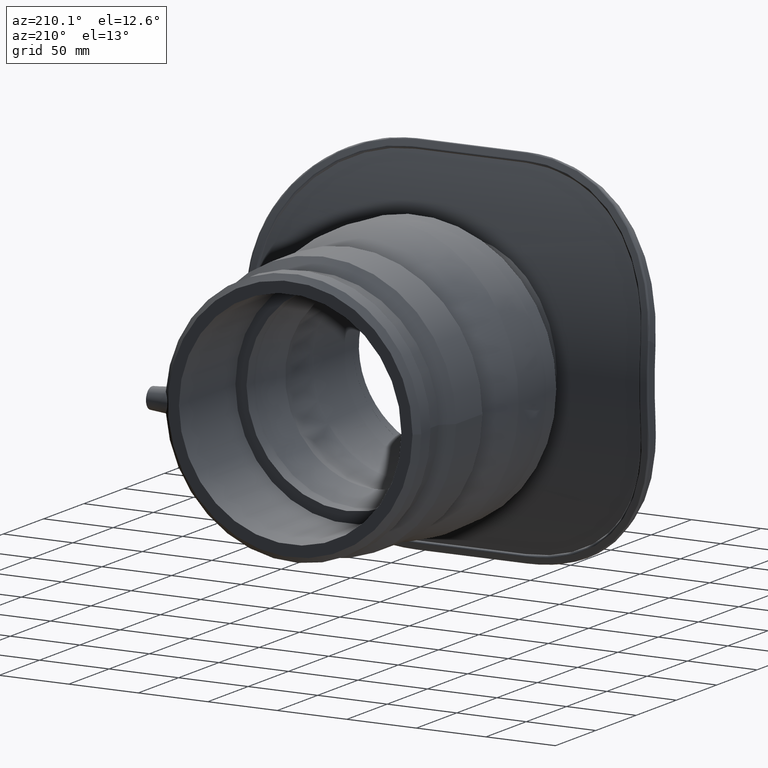
[diagram: clean part render]
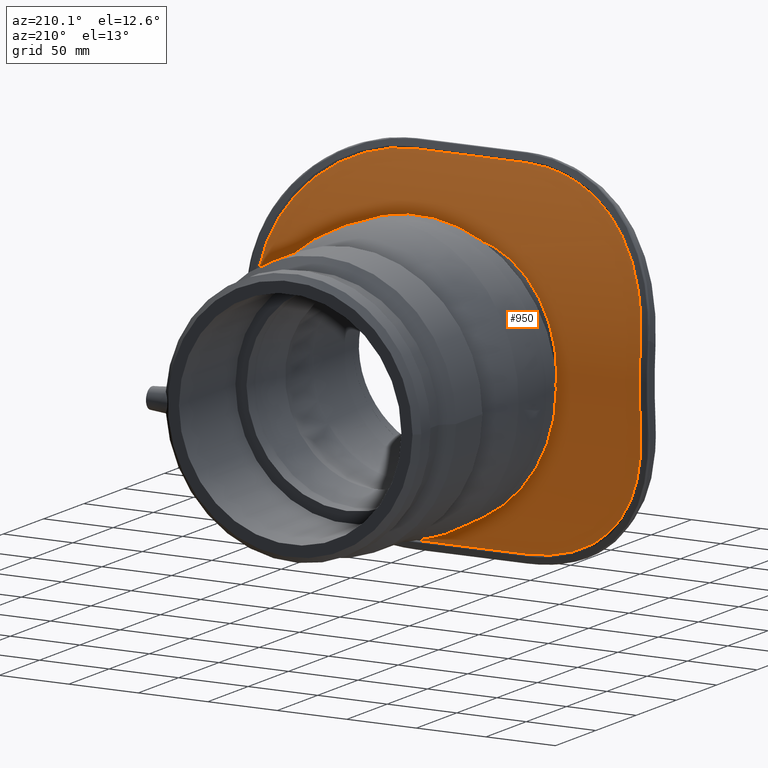
[diagram: same view with one face highlighted and labeled with its STEP entity id]
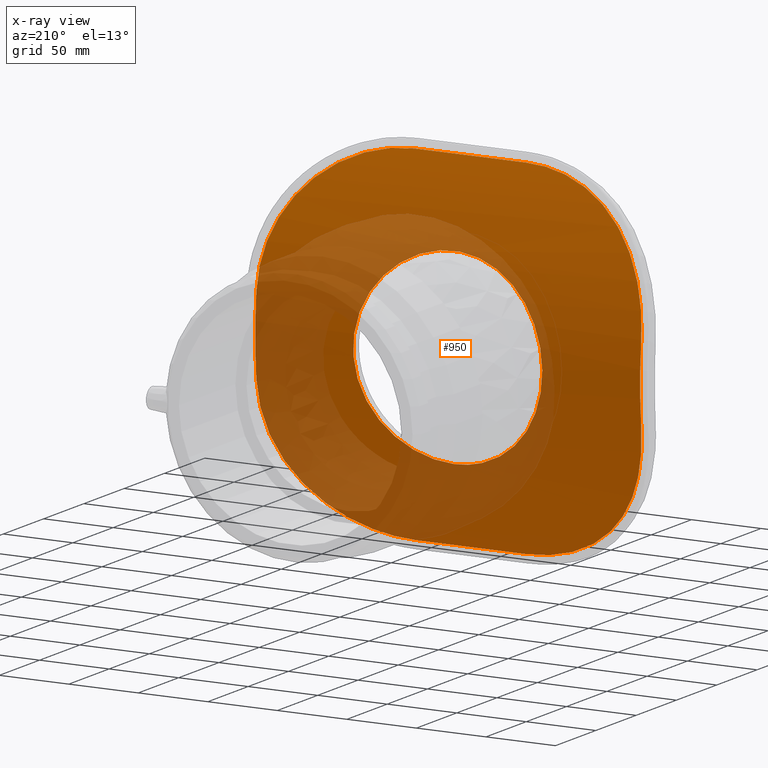
[diagram: x-ray of the same camera — body ghosted, the highlighted face saturated]
A machine part, auxiliary view. The second image highlights one B-rep face of the part: STEP entity #950.
The next image is the same camera in x-ray: the body ghosted, the highlighted face saturated — about 40% of this face is hidden behind the body in this view.
In plain terms, the highlighted cylindrical surface (partial cylindrical patch) has radius 286.575 mm, axis along (1, 0, 0).
Its self-contained STEP definition (entity closure, byte-faithful):
#33=LINE('',#2525,#61);
#38=LINE('',#2594,#66);
#61=VECTOR('',#1307,79.5999999999999);
#66=VECTOR('',#1324,79.5999999999999);
#97=B_SPLINE_CURVE_WITH_KNOTS('',3,(#1677,#1678,#1679,#1680,#1681,#1682,
#1683,#1684,#1685,#1686,#1687,#1688,#1689,#1690,#1691,#1692,#1693,#1694,
#1695,#1696,#1697,#1698,#1699,#1700,#1701,#1702,#1703,#1704,#1705,#1706,
#1707,#1708,#1709,#1710,#1711,#1712,#1713,#1714,#1715,#1716,#1717,#1718,
#1719,#1720,#1721,#1722,#1723,#1724,#1725,#1726,#1727,#1728,#1729,#1730,
#1731,#1732,#1733,#1734,#1735,#1736,#1737,#1738,#1739,#1740,#1741,#1742),
 .UNSPECIFIED.,.T.,.F.,(4,2,2,2,2,2,2,2,2,2,2,2,2,2,2,2,2,2,2,2,2,2,2,2,
2,2,2,2,2,2,2,2,4),(0.,1.28610512812751,2.57221025625502,3.85831538438254,
5.14442051251005,6.43038058357797,7.71634065464589,9.00230072571381,10.2882607967817,
11.5742208678497,12.8601809389176,14.1461410099855,15.4321010810534,16.7182062091809,
18.0043113373084,19.290416465436,20.5765215935635,21.862626721691,23.1487318498185,
24.434836977946,25.7209421060735,27.0069021771414,28.2928622482094,29.5788223192773,
30.8647823903452,32.1507424614131,33.436702532481,34.722662603549,36.0086226746169,
37.2947278027444,38.5808329308719,39.8669380589994,41.1530431871269),
 .UNSPECIFIED.);
#117=B_SPLINE_CURVE_WITH_KNOTS('',3,(#2504,#2505,#2506,#2507,#2508,#2509,
#2510,#2511,#2512,#2513,#2514,#2515,#2516,#2517,#2518,#2519,#2520,#2521),
 .UNSPECIFIED.,.F.,.F.,(4,2,2,2,2,2,2,2,4),(47.7178379300872,49.6359659170831,
51.554093904079,53.4722218910749,55.3903498780708,57.247949082387,59.1055482867031,
60.9631474910193,62.8207466953355),.UNSPECIFIED.);
#118=B_SPLINE_CURVE_WITH_KNOTS('',3,(#2529,#2530,#2531,#2532,#2533,#2534,
#2535,#2536,#2537,#2538,#2539,#2540,#2541,#2542,#2543,#2544,#2545,#2546),
 .UNSPECIFIED.,.F.,.F.,(4,2,2,2,2,2,2,2,4),(31.4103733476677,33.2679725519839,
35.1255717563001,36.9831709606162,38.8407701649324,40.7588981519283,42.6770261389242,
44.5951541259201,46.5132821129159),.UNSPECIFIED.);
#119=B_SPLINE_CURVE_WITH_KNOTS('',3,(#2554,#2555,#2556,#2557,#2558,#2559,
#2560,#2561,#2562,#2563,#2564,#2565,#2566,#2567,#2568,#2569,#2570,#2571),
 .UNSPECIFIED.,.F.,.F.,(4,2,2,2,2,2,2,2,4),(16.3074645824195,18.2255925694154,
20.1437205564113,22.0618485434072,23.9799765304031,25.8375757347192,27.6951749390354,
29.5527741433516,31.4103733476677),.UNSPECIFIED.);
#120=B_SPLINE_CURVE_WITH_KNOTS('',3,(#2574,#2575,#2576,#2577,#2578,#2579,
#2580,#2581,#2582,#2583,#2584,#2585,#2586,#2587,#2588,#2589,#2590,#2591),
 .UNSPECIFIED.,.F.,.F.,(4,2,2,2,2,2,2,2,4),(0.,1.85759920431617,3.71519840863235,
5.57279761294852,7.43039681726469,9.34852480426057,11.2666527912565,13.1847807782523,
15.1029087652482),.UNSPECIFIED.);
#165=FACE_BOUND('',#358,.T.);
#192=CYLINDRICAL_SURFACE('',#1070,286.575);
#257=FACE_OUTER_BOUND('',#357,.T.);
#357=EDGE_LOOP('',(#836,#837,#838,#839,#840,#841,#842,#843));
#358=EDGE_LOOP('',(#844));
#419=CIRCLE('',#1061,286.575);
#420=CIRCLE('',#1066,286.575);
#457=VERTEX_POINT('',#1676);
#496=VERTEX_POINT('',#2496);
#497=VERTEX_POINT('',#2498);
#498=VERTEX_POINT('',#2502);
#499=VERTEX_POINT('',#2523);
#500=VERTEX_POINT('',#2527);
#501=VERTEX_POINT('',#2548);
#502=VERTEX_POINT('',#2552);
#503=VERTEX_POINT('',#2573);
#546=EDGE_CURVE('',#457,#457,#97,.T.);
#606=EDGE_CURVE('',#497,#496,#419,.F.);
#609=EDGE_CURVE('',#496,#498,#117,.T.);
#611=EDGE_CURVE('',#498,#499,#33,.F.);
#613=EDGE_CURVE('',#499,#500,#118,.T.);
#615=EDGE_CURVE('',#500,#501,#420,.T.);
#617=EDGE_CURVE('',#501,#502,#119,.T.);
#618=EDGE_CURVE('',#503,#497,#120,.T.);
#620=EDGE_CURVE('',#503,#502,#38,.F.);
#836=ORIENTED_EDGE('',*,*,#609,.T.);
#837=ORIENTED_EDGE('',*,*,#611,.T.);
#838=ORIENTED_EDGE('',*,*,#613,.T.);
#839=ORIENTED_EDGE('',*,*,#615,.T.);
#840=ORIENTED_EDGE('',*,*,#617,.T.);
#841=ORIENTED_EDGE('',*,*,#620,.F.);
#842=ORIENTED_EDGE('',*,*,#618,.T.);
#843=ORIENTED_EDGE('',*,*,#606,.T.);
#844=ORIENTED_EDGE('',*,*,#546,.T.);
#950=ADVANCED_FACE('',(#257,#165),#192,.T.);
#1061=AXIS2_PLACEMENT_3D('',#2499,#1298,#1299);
#1066=AXIS2_PLACEMENT_3D('',#2550,#1314,#1315);
#1070=AXIS2_PLACEMENT_3D('',#2595,#1325,#1326);
#1298=DIRECTION('center_axis',(-1.,0.,0.));
#1299=DIRECTION('ref_axis',(0.,-0.889998250759874,0.455963938973648));
#1307=DIRECTION('',(-1.,0.,0.));
#1314=DIRECTION('center_axis',(-1.,0.,0.));
#1315=DIRECTION('ref_axis',(0.,-0.889998250759874,0.455963938973648));
#1324=DIRECTION('',(-1.,0.,0.));
#1325=DIRECTION('center_axis',(1.,0.,0.));
#1326=DIRECTION('ref_axis',(0.,-0.889998250759874,0.455963938973648));
#1676=CARTESIAN_POINT('',(0.,-42.009571599525,-68.));
#1677=CARTESIAN_POINT('Ctrl Pts',(0.,-42.009571599525,-68.));
#1678=CARTESIAN_POINT('Ctrl Pts',(4.28701709375837,-42.009571599525,-68.));
#1679=CARTESIAN_POINT('Ctrl Pts',(8.71497044420772,-41.9078539356503,-67.5880568570583));
#1680=CARTESIAN_POINT('Ctrl Pts',(17.5124141890529,-41.4939058404493,-65.8590273947117));
#1681=CARTESIAN_POINT('Ctrl Pts',(21.8820051373346,-41.1820138946437,-64.5423717095247));
#1682=CARTESIAN_POINT('Ctrl Pts',(30.2537370746196,-40.4015180753161,-61.0675975763926));
#1683=CARTESIAN_POINT('Ctrl Pts',(34.2628587730992,-39.933071793607,-58.9067178288634));
#1684=CARTESIAN_POINT('Ctrl Pts',(41.6728424815149,-38.9317422418281,-53.9195613571932));
#1685=CARTESIAN_POINT('Ctrl Pts',(45.0735995969656,-38.39988593313,-51.0929226444048));
#1686=CARTESIAN_POINT('Ctrl Pts',(51.0925831910884,-37.3754622047468,-45.073939050282));
#1687=CARTESIAN_POINT('Ctrl Pts',(53.9191835904317,-36.8465906691279,-41.6733401357589));
#1688=CARTESIAN_POINT('Ctrl Pts',(58.9064915591008,-35.8560977081645,-34.2632585966848));
#1689=CARTESIAN_POINT('Ctrl Pts',(61.0675452861964,-35.3954332239968,-30.2538810740212));
#1690=CARTESIAN_POINT('Ctrl Pts',(64.5425125122947,-34.6306981378705,-21.8816478852186));
#1691=CARTESIAN_POINT('Ctrl Pts',(65.8591873163864,-34.3266589594017,-17.5118192049041));
#1692=CARTESIAN_POINT('Ctrl Pts',(67.5881437233136,-33.9236814811682,-8.71430971990528));
#1693=CARTESIAN_POINT('Ctrl Pts',(68.,-33.825,-4.2865335702264));
#1694=CARTESIAN_POINT('Ctrl Pts',(68.,-33.825,4.2865335702264));
#1695=CARTESIAN_POINT('Ctrl Pts',(67.5881437233136,-33.9236814811682,8.71430971990528));
#1696=CARTESIAN_POINT('Ctrl Pts',(65.8591873163864,-34.3266589594017,17.5118192049041));
#1697=CARTESIAN_POINT('Ctrl Pts',(64.5425125122947,-34.6306981378705,21.8816478852186));
#1698=CARTESIAN_POINT('Ctrl Pts',(61.0675452861964,-35.3954332239968,30.2538810740212));
#1699=CARTESIAN_POINT('Ctrl Pts',(58.9064915591008,-35.8560977081644,34.2632585966848));
#1700=CARTESIAN_POINT('Ctrl Pts',(53.9191835904317,-36.8465906691278,41.6733401357589));
#1701=CARTESIAN_POINT('Ctrl Pts',(51.0925831910884,-37.3754622047467,45.073939050282));
#1702=CARTESIAN_POINT('Ctrl Pts',(45.0735995969656,-38.39988593313,51.0929226444048));
#1703=CARTESIAN_POINT('Ctrl Pts',(41.6728424815149,-38.9317422418281,53.9195613571932));
#1704=CARTESIAN_POINT('Ctrl Pts',(34.2628587730992,-39.933071793607,58.9067178288634));
#1705=CARTESIAN_POINT('Ctrl Pts',(30.2537370746196,-40.4015180753161,61.0675975763926));
#1706=CARTESIAN_POINT('Ctrl Pts',(21.8820051373346,-41.1820138946437,64.5423717095247));
#1707=CARTESIAN_POINT('Ctrl Pts',(17.5124141890529,-41.4939058404493,65.8590273947117));
#1708=CARTESIAN_POINT('Ctrl Pts',(8.71497044420772,-41.9078539356503,67.5880568570583));
#1709=CARTESIAN_POINT('Ctrl Pts',(4.28701709375838,-42.0095715995249,68.));
#1710=CARTESIAN_POINT('Ctrl Pts',(-4.28701709375838,-42.0095715995249,68.));
#1711=CARTESIAN_POINT('Ctrl Pts',(-8.71497044420772,-41.9078539356503,67.5880568570583));
#1712=CARTESIAN_POINT('Ctrl Pts',(-17.5124141890529,-41.4939058404493,65.8590273947117));
#1713=CARTESIAN_POINT('Ctrl Pts',(-21.8820051373346,-41.1820138946437,64.5423717095247));
#1714=CARTESIAN_POINT('Ctrl Pts',(-30.2537370746196,-40.4015180753161,61.0675975763926));
#1715=CARTESIAN_POINT('Ctrl Pts',(-34.2628587730992,-39.9330717936071,58.9067178288634));
#1716=CARTESIAN_POINT('Ctrl Pts',(-41.6728424815149,-38.9317422418281,53.9195613571932));
#1717=CARTESIAN_POINT('Ctrl Pts',(-45.0735995969656,-38.39988593313,51.0929226444048));
#1718=CARTESIAN_POINT('Ctrl Pts',(-51.0925831910884,-37.3754622047467,45.073939050282));
#1719=CARTESIAN_POINT('Ctrl Pts',(-53.9191835904317,-36.8465906691278,41.6733401357589));
#1720=CARTESIAN_POINT('Ctrl Pts',(-58.9064915591008,-35.8560977081644,34.2632585966848));
#1721=CARTESIAN_POINT('Ctrl Pts',(-61.0675452861964,-35.3954332239968,30.2538810740212));
#1722=CARTESIAN_POINT('Ctrl Pts',(-64.5425125122947,-34.6306981378705,21.8816478852186));
#1723=CARTESIAN_POINT('Ctrl Pts',(-65.8591873163864,-34.3266589594017,17.5118192049042));
#1724=CARTESIAN_POINT('Ctrl Pts',(-67.5881437233136,-33.9236814811682,8.7143097199053));
#1725=CARTESIAN_POINT('Ctrl Pts',(-68.,-33.825,4.28653357022642));
#1726=CARTESIAN_POINT('Ctrl Pts',(-68.,-33.825,-4.2865335702264));
#1727=CARTESIAN_POINT('Ctrl Pts',(-67.5881437233136,-33.9236814811682,-8.71430971990528));
#1728=CARTESIAN_POINT('Ctrl Pts',(-65.8591873163864,-34.3266589594017,-17.5118192049041));
#1729=CARTESIAN_POINT('Ctrl Pts',(-64.5425125122947,-34.6306981378706,-21.8816478852186));
#1730=CARTESIAN_POINT('Ctrl Pts',(-61.0675452861964,-35.3954332239968,-30.2538810740212));
#1731=CARTESIAN_POINT('Ctrl Pts',(-58.9064915591008,-35.8560977081644,-34.2632585966848));
#1732=CARTESIAN_POINT('Ctrl Pts',(-53.9191835904317,-36.8465906691278,-41.6733401357589));
#1733=CARTESIAN_POINT('Ctrl Pts',(-51.0925831910885,-37.3754622047467,-45.073939050282));
#1734=CARTESIAN_POINT('Ctrl Pts',(-45.0735995969656,-38.39988593313,-51.0929226444048));
#1735=CARTESIAN_POINT('Ctrl Pts',(-41.6728424815149,-38.9317422418281,-53.9195613571932));
#1736=CARTESIAN_POINT('Ctrl Pts',(-34.2628587730993,-39.9330717936071,-58.9067178288634));
#1737=CARTESIAN_POINT('Ctrl Pts',(-30.2537370746196,-40.4015180753161,-61.0675975763926));
#1738=CARTESIAN_POINT('Ctrl Pts',(-21.8820051373346,-41.1820138946437,-64.5423717095247));
#1739=CARTESIAN_POINT('Ctrl Pts',(-17.5124141890529,-41.4939058404493,-65.8590273947118));
#1740=CARTESIAN_POINT('Ctrl Pts',(-8.7149704442077,-41.9078539356503,-67.5880568570583));
#1741=CARTESIAN_POINT('Ctrl Pts',(-4.28701709375837,-42.009571599525,-68.));
#1742=CARTESIAN_POINT('Ctrl Pts',(0.,-42.009571599525,-68.));
#2496=CARTESIAN_POINT('',(-138.425,-35.1880540745325,27.9173158883194));
#2498=CARTESIAN_POINT('',(-138.425,-35.1880540745325,-27.9173158883195));
#2499=CARTESIAN_POINT('Origin',(-138.425,-320.4,0.));
#2502=CARTESIAN_POINT('',(-39.8,-62.4179265652321,124.781731079906));
#2504=CARTESIAN_POINT('Ctrl Pts',(-138.425,-35.1880540745325,27.9173158883194));
#2505=CARTESIAN_POINT('Ctrl Pts',(-138.425,-35.810915860885,34.2806648162347));
#2506=CARTESIAN_POINT('Ctrl Pts',(-137.877865155871,-36.6746835072427,40.8486671302924));
#2507=CARTESIAN_POINT('Ctrl Pts',(-135.482902029252,-38.8525790726638,53.849035215615));
#2508=CARTESIAN_POINT('Ctrl Pts',(-133.63443866205,-40.1661480180968,60.281377618514));
#2509=CARTESIAN_POINT('Ctrl Pts',(-128.655258369057,-43.083439669321,72.5284873391381));
#2510=CARTESIAN_POINT('Ctrl Pts',(-125.519132543326,-44.6885336043085,78.3557354241248));
#2511=CARTESIAN_POINT('Ctrl Pts',(-118.185015791162,-47.9514676898323,89.0406155480287));
#2512=CARTESIAN_POINT('Ctrl Pts',(-113.986608622464,-49.6070255376868,93.8986587142579));
#2513=CARTESIAN_POINT('Ctrl Pts',(-105.113824358027,-52.6644278083295,102.284794753986));
#2514=CARTESIAN_POINT('Ctrl Pts',(-100.178116197088,-54.171018280961,106.115501655946));
#2515=CARTESIAN_POINT('Ctrl Pts',(-89.4231789143715,-56.9402733106507,112.815525575585));
#2516=CARTESIAN_POINT('Ctrl Pts',(-83.6043124465688,-58.2010849882743,115.686190360265));
#2517=CARTESIAN_POINT('Ctrl Pts',(-71.4628950224474,-60.2734828091682,120.273690497503));
#2518=CARTESIAN_POINT('Ctrl Pts',(-65.1305893131189,-61.0854686711948,121.994927551641));
#2519=CARTESIAN_POINT('Ctrl Pts',(-52.3951898995869,-62.1579620373758,124.249097925701));
#2520=CARTESIAN_POINT('Ctrl Pts',(-45.9919973477206,-62.4179265652321,124.781731079906));
#2521=CARTESIAN_POINT('Ctrl Pts',(-39.8,-62.4179265652321,124.781731079906));
#2523=CARTESIAN_POINT('',(39.8,-62.4179265652321,124.781731079906));
#2525=CARTESIAN_POINT('',(0.,-62.4179265652321,124.781731079906));
#2527=CARTESIAN_POINT('',(138.425,-35.1880540745325,27.9173158883194));
#2529=CARTESIAN_POINT('Ctrl Pts',(39.8,-62.4179265652321,124.781731079906));
#2530=CARTESIAN_POINT('Ctrl Pts',(45.9919973477205,-62.4179265652321,124.781731079906));
#2531=CARTESIAN_POINT('Ctrl Pts',(52.3951898995869,-62.1579620373758,124.249097925701));
#2532=CARTESIAN_POINT('Ctrl Pts',(65.130589313119,-61.0854686711948,121.994927551641));
#2533=CARTESIAN_POINT('Ctrl Pts',(71.4628950224475,-60.2734828091682,120.273690497503));
#2534=CARTESIAN_POINT('Ctrl Pts',(83.6043124465688,-58.2010849882743,115.686190360265));
#2535=CARTESIAN_POINT('Ctrl Pts',(89.4231789143715,-56.9402733106507,112.815525575585));
#2536=CARTESIAN_POINT('Ctrl Pts',(100.178116197087,-54.171018280961,106.115501655946));
#2537=CARTESIAN_POINT('Ctrl Pts',(105.113824358027,-52.6644278083295,102.284794753986));
#2538=CARTESIAN_POINT('Ctrl Pts',(113.986608622464,-49.6070255376868,93.8986587142581));
#2539=CARTESIAN_POINT('Ctrl Pts',(118.185015791162,-47.9514676898323,89.0406155480289));
#2540=CARTESIAN_POINT('Ctrl Pts',(125.519132543325,-44.6885336043085,78.355735424125));
#2541=CARTESIAN_POINT('Ctrl Pts',(128.655258369057,-43.083439669321,72.5284873391382));
#2542=CARTESIAN_POINT('Ctrl Pts',(133.63443866205,-40.1661480180968,60.2813776185142));
#2543=CARTESIAN_POINT('Ctrl Pts',(135.482902029252,-38.8525790726639,53.8490352156152));
#2544=CARTESIAN_POINT('Ctrl Pts',(137.877865155871,-36.6746835072427,40.8486671302926));
#2545=CARTESIAN_POINT('Ctrl Pts',(138.425,-35.810915860885,34.2806648162348));
#2546=CARTESIAN_POINT('Ctrl Pts',(138.425,-35.1880540745325,27.9173158883196));
#2548=CARTESIAN_POINT('',(138.425,-35.1880540745325,-27.9173158883195));
#2550=CARTESIAN_POINT('Origin',(138.425,-320.4,0.));
#2552=CARTESIAN_POINT('',(39.8,-62.4179265652322,-124.781731079906));
#2554=CARTESIAN_POINT('Ctrl Pts',(138.425,-35.1880540745325,-27.9173158883195));
#2555=CARTESIAN_POINT('Ctrl Pts',(138.425,-35.810915860885,-34.2806648162348));
#2556=CARTESIAN_POINT('Ctrl Pts',(137.877865155871,-36.6746835072427,-40.8486671302925));
#2557=CARTESIAN_POINT('Ctrl Pts',(135.482902029252,-38.8525790726638,-53.8490352156151));
#2558=CARTESIAN_POINT('Ctrl Pts',(133.63443866205,-40.1661480180968,-60.2813776185141));
#2559=CARTESIAN_POINT('Ctrl Pts',(128.655258369057,-43.083439669321,-72.5284873391382));
#2560=CARTESIAN_POINT('Ctrl Pts',(125.519132543325,-44.6885336043085,-78.3557354241249));
#2561=CARTESIAN_POINT('Ctrl Pts',(118.185015791162,-47.9514676898323,-89.0406155480288));
#2562=CARTESIAN_POINT('Ctrl Pts',(113.986608622464,-49.6070255376868,-93.898658714258));
#2563=CARTESIAN_POINT('Ctrl Pts',(105.113824358027,-52.6644278083295,-102.284794753986));
#2564=CARTESIAN_POINT('Ctrl Pts',(100.178116197087,-54.1710182809611,-106.115501655946));
#2565=CARTESIAN_POINT('Ctrl Pts',(89.4231789143715,-56.9402733106507,-112.815525575585));
#2566=CARTESIAN_POINT('Ctrl Pts',(83.6043124465688,-58.2010849882743,-115.686190360265));
#2567=CARTESIAN_POINT('Ctrl Pts',(71.4628950224475,-60.2734828091682,-120.273690497503));
#2568=CARTESIAN_POINT('Ctrl Pts',(65.130589313119,-61.0854686711948,-121.994927551641));
#2569=CARTESIAN_POINT('Ctrl Pts',(52.3951898995869,-62.1579620373758,-124.249097925701));
#2570=CARTESIAN_POINT('Ctrl Pts',(45.9919973477206,-62.4179265652322,-124.781731079906));
#2571=CARTESIAN_POINT('Ctrl Pts',(39.8,-62.4179265652322,-124.781731079906));
#2573=CARTESIAN_POINT('',(-39.8,-62.4179265652322,-124.781731079906));
#2574=CARTESIAN_POINT('Ctrl Pts',(-39.8,-62.4179265652322,-124.781731079906));
#2575=CARTESIAN_POINT('Ctrl Pts',(-45.9919973477205,-62.4179265652322,-124.781731079906));
#2576=CARTESIAN_POINT('Ctrl Pts',(-52.3951898995869,-62.1579620373758,-124.249097925701));
#2577=CARTESIAN_POINT('Ctrl Pts',(-65.130589313119,-61.0854686711948,-121.994927551641));
#2578=CARTESIAN_POINT('Ctrl Pts',(-71.4628950224475,-60.2734828091682,-120.273690497503));
#2579=CARTESIAN_POINT('Ctrl Pts',(-83.6043124465688,-58.2010849882743,-115.686190360265));
#2580=CARTESIAN_POINT('Ctrl Pts',(-89.4231789143715,-56.9402733106507,-112.815525575585));
#2581=CARTESIAN_POINT('Ctrl Pts',(-100.178116197087,-54.1710182809611,-106.115501655946));
#2582=CARTESIAN_POINT('Ctrl Pts',(-105.113824358027,-52.6644278083295,-102.284794753986));
#2583=CARTESIAN_POINT('Ctrl Pts',(-113.986608622464,-49.6070255376868,-93.898658714258));
#2584=CARTESIAN_POINT('Ctrl Pts',(-118.185015791162,-47.9514676898323,-89.0406155480288));
#2585=CARTESIAN_POINT('Ctrl Pts',(-125.519132543325,-44.6885336043085,-78.3557354241249));
#2586=CARTESIAN_POINT('Ctrl Pts',(-128.655258369057,-43.083439669321,-72.5284873391382));
#2587=CARTESIAN_POINT('Ctrl Pts',(-133.63443866205,-40.1661480180968,-60.281377618514));
#2588=CARTESIAN_POINT('Ctrl Pts',(-135.482902029252,-38.8525790726638,-53.8490352156151));
#2589=CARTESIAN_POINT('Ctrl Pts',(-137.877865155871,-36.6746835072427,-40.8486671302925));
#2590=CARTESIAN_POINT('Ctrl Pts',(-138.425,-35.810915860885,-34.2806648162348));
#2591=CARTESIAN_POINT('Ctrl Pts',(-138.425,-35.1880540745325,-27.9173158883195));
#2594=CARTESIAN_POINT('',(0.,-62.4179265652321,-124.781731079906));
#2595=CARTESIAN_POINT('Origin',(0.,-320.4,0.));